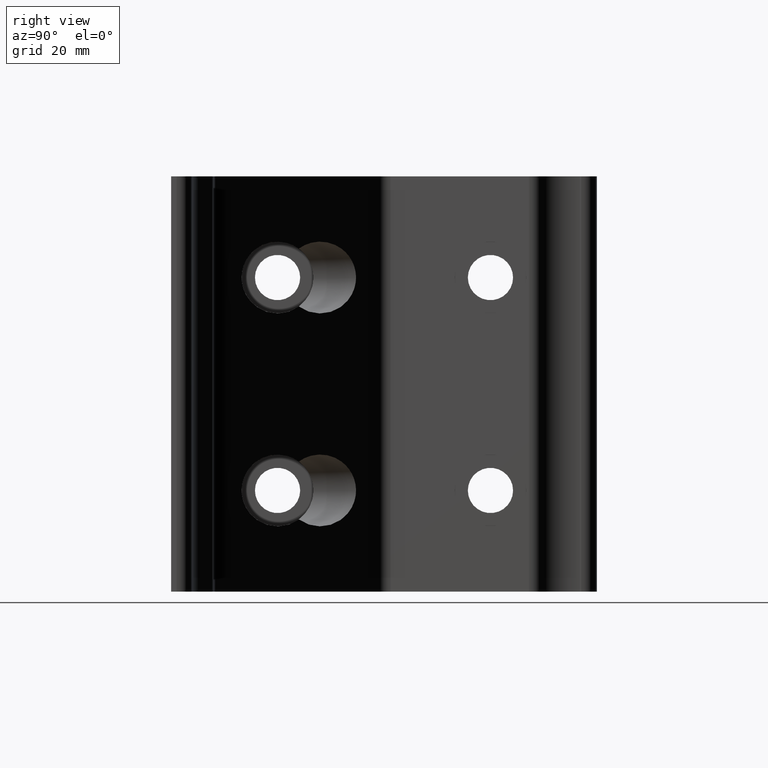
[diagram: clean part render]
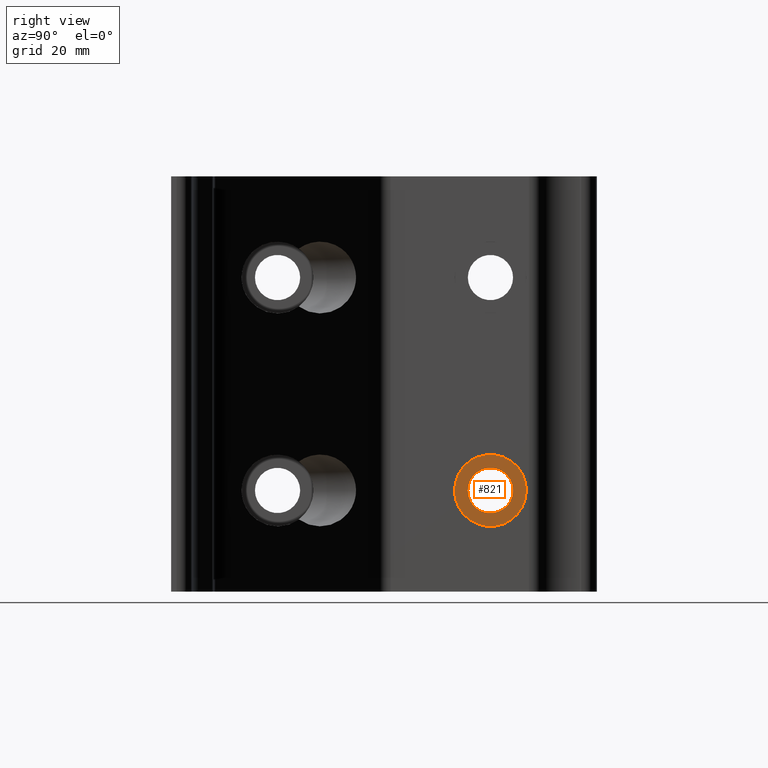
[diagram: same view with one face highlighted and labeled with its STEP entity id]
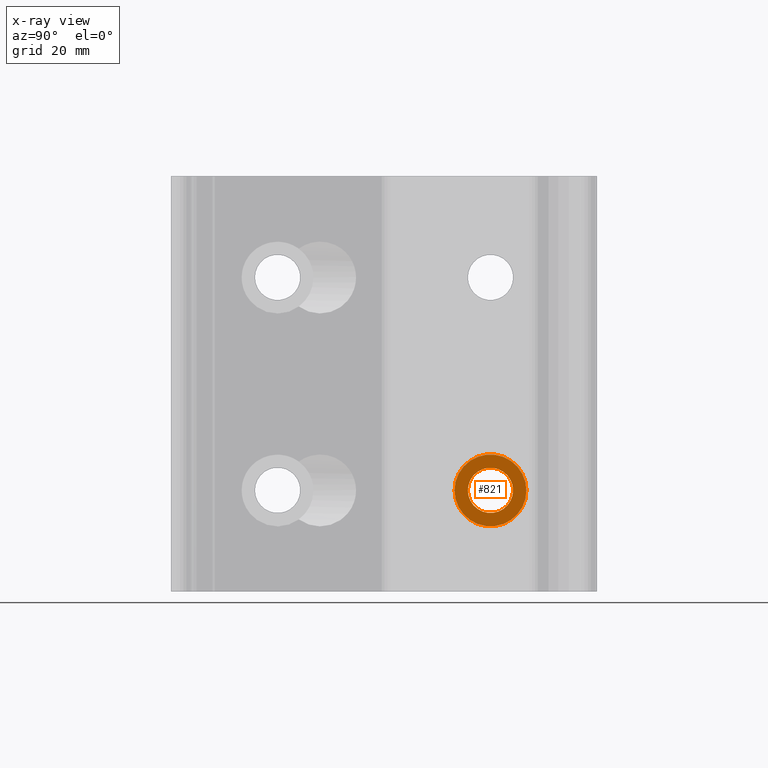
[diagram: x-ray of the same camera — body ghosted, the highlighted face saturated]
A machine part, right view. The second image highlights one B-rep face of the part: STEP entity #821.
The next image is the same camera in x-ray: the body ghosted, the highlighted face saturated — about 0% of this face is hidden behind the body in this view.
In plain terms, the highlighted planar face has unit normal (1, 0, 0).
Its self-contained STEP definition (entity closure, byte-faithful):
#54=FACE_BOUND('',#240,.T.);
#97=CIRCLE('',#951,4.24999905648292);
#98=CIRCLE('',#953,6.74999850147287);
#171=FACE_OUTER_BOUND('',#239,.T.);
#239=EDGE_LOOP('',(#735));
#240=EDGE_LOOP('',(#736));
#417=VERTEX_POINT('',#1453);
#418=VERTEX_POINT('',#1457);
#528=EDGE_CURVE('',#417,#417,#97,.T.);
#530=EDGE_CURVE('',#418,#418,#98,.T.);
#735=ORIENTED_EDGE('',*,*,#530,.F.);
#736=ORIENTED_EDGE('',*,*,#528,.T.);
#775=PLANE('',#952);
#821=ADVANCED_FACE('',(#171,#54),#775,.T.);
#951=AXIS2_PLACEMENT_3D('',#1454,#1215,#1216);
#952=AXIS2_PLACEMENT_3D('',#1456,#1218,#1219);
#953=AXIS2_PLACEMENT_3D('',#1458,#1220,#1221);
#1215=DIRECTION('center_axis',(-1.,0.,0.));
#1216=DIRECTION('ref_axis',(0.,-1.,0.));
#1218=DIRECTION('center_axis',(1.,0.,0.));
#1219=DIRECTION('ref_axis',(0.,0.,-1.));
#1220=DIRECTION('center_axis',(-1.,0.,0.));
#1221=DIRECTION('ref_axis',(0.,-1.,0.));
#1453=CARTESIAN_POINT('',(4.9999988899799,64.2499857362432,-19.999986901764));
#1454=CARTESIAN_POINT('Origin',(4.9999988899799,59.9999866797602,-19.999986901764));
#1456=CARTESIAN_POINT('Origin',(4.9999988899799,73.499983682706,-33.4999839047098));
#1457=CARTESIAN_POINT('',(4.9999988899799,66.7499851812331,-19.999986901764));
#1458=CARTESIAN_POINT('Origin',(4.9999988899799,59.9999866797602,-19.999986901764));